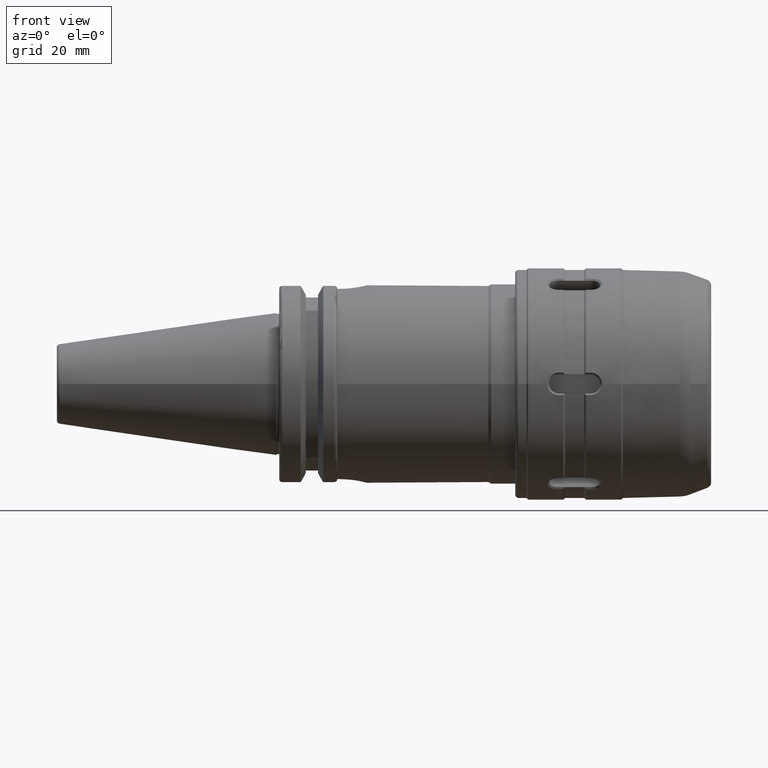
[diagram: clean part render]
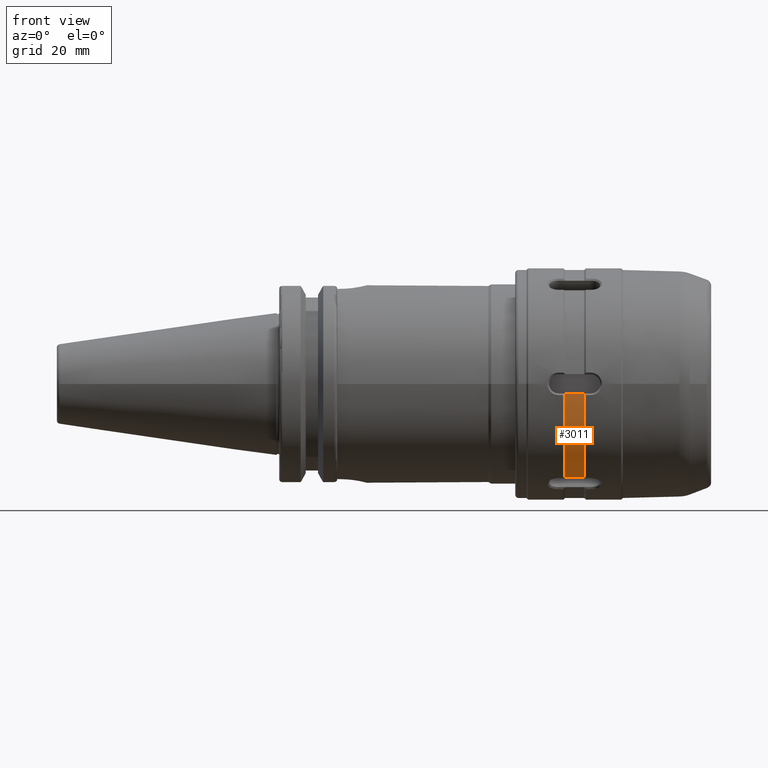
[diagram: same view with one face highlighted and labeled with its STEP entity id]
A machine part, front view. The second image highlights one B-rep face of the part: STEP entity #3011.
In plain terms, the highlighted cylindrical surface (partial cylindrical patch) has radius 35.5 mm, axis along (1, 0, 0).
Its self-contained STEP definition (entity closure, byte-faithful):
#353=FACE_OUTER_BOUND('',#539,.T.);
#539=EDGE_LOOP('',(#2604,#2605,#2606,#2607));
#655=CIRCLE('',#3280,35.5);
#659=CIRCLE('',#3288,35.5);
#827=LINE('',#5154,#1052);
#848=LINE('',#5394,#1073);
#1052=VECTOR('',#3836,10.);
#1073=VECTOR('',#3883,10.);
#1363=VERTEX_POINT('',#5151);
#1364=VERTEX_POINT('',#5153);
#1371=VERTEX_POINT('',#5259);
#1383=VERTEX_POINT('',#5383);
#1723=EDGE_CURVE('',#1364,#1363,#827,.T.);
#1735=EDGE_CURVE('',#1371,#1364,#655,.T.);
#1753=EDGE_CURVE('',#1383,#1363,#659,.T.);
#1758=EDGE_CURVE('',#1383,#1371,#848,.T.);
#2604=ORIENTED_EDGE('',*,*,#1723,.T.);
#2605=ORIENTED_EDGE('',*,*,#1753,.F.);
#2606=ORIENTED_EDGE('',*,*,#1758,.T.);
#2607=ORIENTED_EDGE('',*,*,#1735,.T.);
#2864=CYLINDRICAL_SURFACE('',#3343,35.5);
#3011=ADVANCED_FACE('',(#353),#2864,.T.);
#3280=AXIS2_PLACEMENT_3D('',#5260,#3851,#3852);
#3288=AXIS2_PLACEMENT_3D('',#5385,#3875,#3876);
#3343=AXIS2_PLACEMENT_3D('',#6055,#4052,#4053);
#3836=DIRECTION('',(1.,0.,0.));
#3851=DIRECTION('center_axis',(1.,0.,0.));
#3852=DIRECTION('ref_axis',(0.,0.,-1.));
#3875=DIRECTION('center_axis',(1.,0.,0.));
#3876=DIRECTION('ref_axis',(0.,0.,-1.));
#3883=DIRECTION('',(-1.,0.,0.));
#4052=DIRECTION('center_axis',(1.,0.,0.));
#4053=DIRECTION('ref_axis',(0.,1.,0.));
#5151=CARTESIAN_POINT('',(21.5,-20.2845823671773,-29.1339272702669));
#5153=CARTESIAN_POINT('',(15.5,-20.2845823671773,-29.1339272702669));
#5154=CARTESIAN_POINT('',(18.5,-20.2845823671773,-29.1339272702669));
#5259=CARTESIAN_POINT('',(15.5,-35.373012311648,-3.));
#5260=CARTESIAN_POINT('Origin',(15.5,0.,0.));
#5383=CARTESIAN_POINT('',(21.5,-35.373012311648,-2.99999999999999));
#5385=CARTESIAN_POINT('Origin',(21.5,0.,0.));
#5394=CARTESIAN_POINT('',(18.5,-35.373012311648,-2.99999999999999));
#6055=CARTESIAN_POINT('Origin',(18.5,0.,0.));